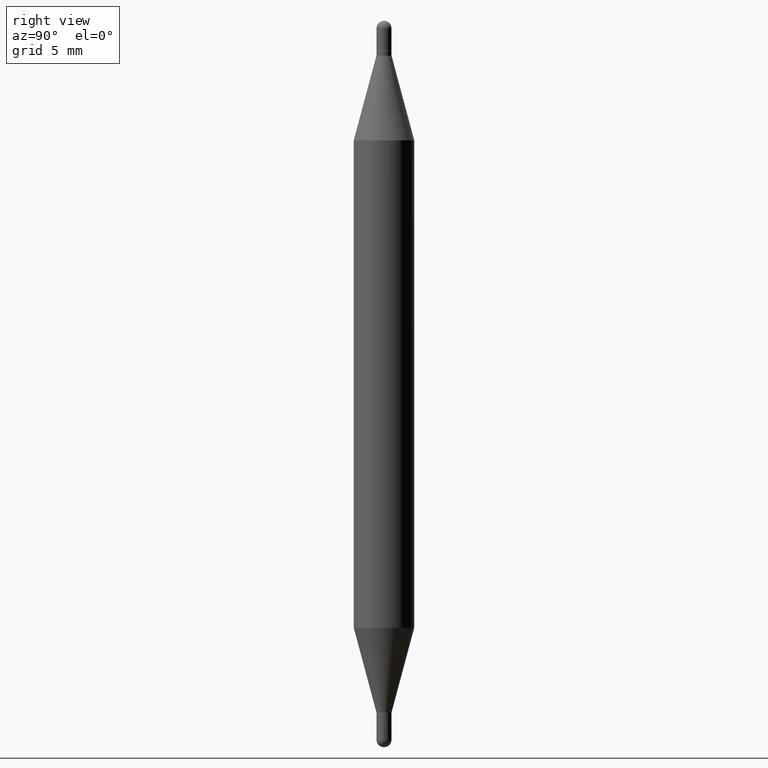
[diagram: clean part render]
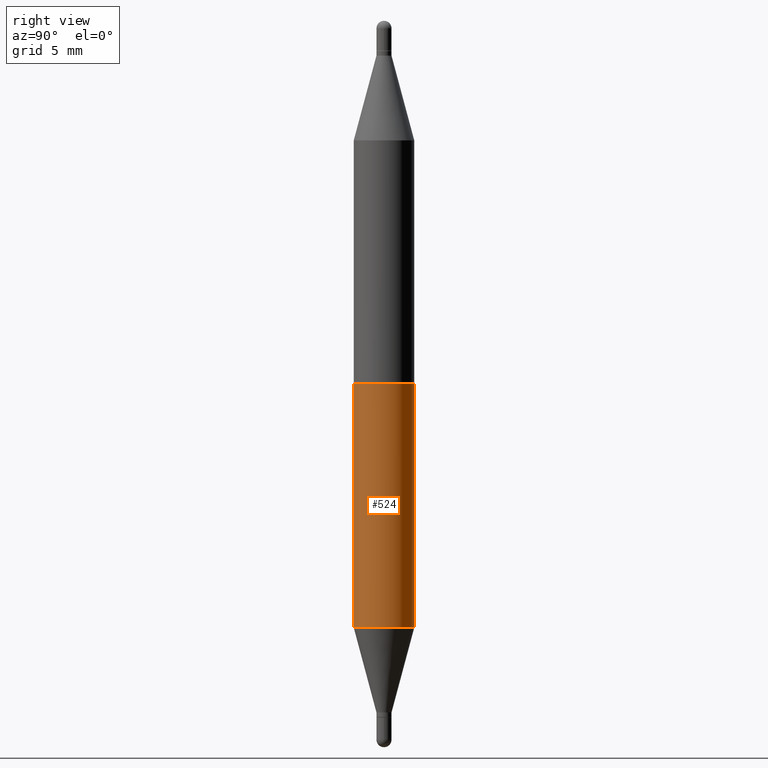
[diagram: same view with one face highlighted and labeled with its STEP entity id]
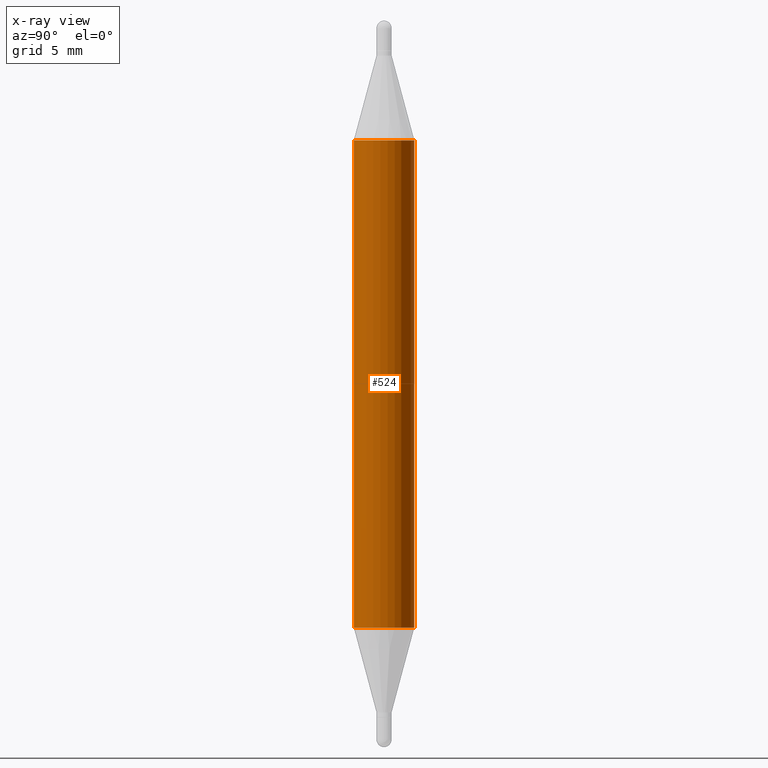
[diagram: x-ray of the same camera — body ghosted, the highlighted face saturated]
A machine part, right view. The second image highlights one B-rep face of the part: STEP entity #524.
The next image is the same camera in x-ray: the body ghosted, the highlighted face saturated — about 0% of this face is hidden behind the body in this view.
In plain terms, the highlighted cylindrical surface (edge-blend (fillet) strip) has radius 1.5875 mm, axis along (-0, -0, -1).
Its self-contained STEP definition (entity closure, byte-faithful):
#194 = EDGE_CURVE ( 'NONE', #830, #1116, #988, .T. ) ;
#199 = CARTESIAN_POINT ( 'NONE',  ( -4.364351673553916201E-16, -0.06250000000000521805, -1.500000000000000222 ) ) ;
#210 = VECTOR ( 'NONE', #272, 39.37007874015748143 ) ;
#217 = DIRECTION ( 'NONE',  ( -2.448446106568060842E-29, -3.483878130583589894E-15, -1.000000000000000000 ) ) ;
#272 = DIRECTION ( 'NONE',  ( -2.448446106568060842E-29, -3.483878130583589894E-15, -1.000000000000000000 ) ) ;
#318 = DIRECTION ( 'NONE',  ( -6.982962677686265922E-15, -1.000000000000000000, 4.370956789862821938E-15 ) ) ;
#319 = EDGE_CURVE ( 'NONE', #417, #1116, #1001, .T. ) ;
#334 = CARTESIAN_POINT ( 'NONE',  ( 3.067821725048732845E-29, -8.631381618369439646E-16, -0.2470331828749794401 ) ) ;
#340 = CARTESIAN_POINT ( 'NONE',  ( 0.000000000000000000, -5.228321854365732350E-15, -1.500000000000000444 ) ) ;
#346 = DIRECTION ( 'NONE',  ( -6.982962677686265922E-15, -1.000000000000000000, 3.278217592397116257E-15 ) ) ;
#417 = VERTEX_POINT ( 'NONE', #612 ) ;
#439 = ORIENTED_EDGE ( 'NONE', *, *, #194, .F. ) ;
#487 = EDGE_CURVE ( 'NONE', #921, #830, #518, .T. ) ;
#489 = DIRECTION ( 'NONE',  ( -2.448446106568060842E-29, 3.487217675237383942E-15, 1.000000000000000000 ) ) ;
#518 = CIRCLE ( 'NONE', #729, 0.06249999999999999306 ) ;
#524 = ADVANCED_FACE ( 'NONE', ( #600 ), #944, .T. ) ;
#600 = FACE_OUTER_BOUND ( 'NONE', #686, .T. ) ;
#602 = DIRECTION ( 'NONE',  ( -6.982962677686265922E-15, -1.000000000000000000, 4.370956789862821150E-15 ) ) ;
#612 = CARTESIAN_POINT ( 'NONE',  ( -4.364351673553608545E-16, -0.06250000000000435763, -1.252966817125020560 ) ) ;
#656 = CARTESIAN_POINT ( 'NONE',  ( 4.287811248607390144E-16, 0.06249999999999562156, -1.252966817125021226 ) ) ;
#686 = EDGE_LOOP ( 'NONE', ( #439, #950, #849, #907 ) ) ;
#720 = CARTESIAN_POINT ( 'NONE',  ( 4.287811248607206733E-16, 0.06249999999999477501, -1.500000000000000666 ) ) ;
#726 = AXIS2_PLACEMENT_3D ( 'NONE', #1009, #489, #318 ) ;
#729 = AXIS2_PLACEMENT_3D ( 'NONE', #334, #957, #346 ) ;
#766 = AXIS2_PLACEMENT_3D ( 'NONE', #340, #1029, #602 ) ;
#830 = VERTEX_POINT ( 'NONE', #1070 ) ;
#849 = ORIENTED_EDGE ( 'NONE', *, *, #933, .T. ) ;
#888 = CARTESIAN_POINT ( 'NONE',  ( -4.364351673553608545E-16, -0.06250000000000084655, -0.2470331828749792180 ) ) ;
#907 = ORIENTED_EDGE ( 'NONE', *, *, #319, .T. ) ;
#921 = VERTEX_POINT ( 'NONE', #888 ) ;
#933 = EDGE_CURVE ( 'NONE', #921, #417, #1053, .T. ) ;
#944 = CYLINDRICAL_SURFACE ( 'NONE', #766, 0.06250000000000000000 ) ;
#950 = ORIENTED_EDGE ( 'NONE', *, *, #487, .F. ) ;
#957 = DIRECTION ( 'NONE',  ( 2.448446106568060842E-29, 3.483878130583589894E-15, 1.000000000000000000 ) ) ;
#988 = LINE ( 'NONE', #720, #1035 ) ;
#1001 = CIRCLE ( 'NONE', #726, 0.06249999999999999306 ) ;
#1009 = CARTESIAN_POINT ( 'NONE',  ( 3.067821725048732845E-29, -4.369368031164300123E-15, -1.252966817125021004 ) ) ;
#1029 = DIRECTION ( 'NONE',  ( -2.448446106568060842E-29, -3.483878130583589894E-15, -1.000000000000000000 ) ) ;
#1035 = VECTOR ( 'NONE', #217, 39.37007874015748143 ) ;
#1053 = LINE ( 'NONE', #199, #210 ) ;
#1070 = CARTESIAN_POINT ( 'NONE',  ( 4.287811248607512910E-16, 0.06249999999999911876, -0.2470331828749796621 ) ) ;
#1116 = VERTEX_POINT ( 'NONE', #656 ) ;